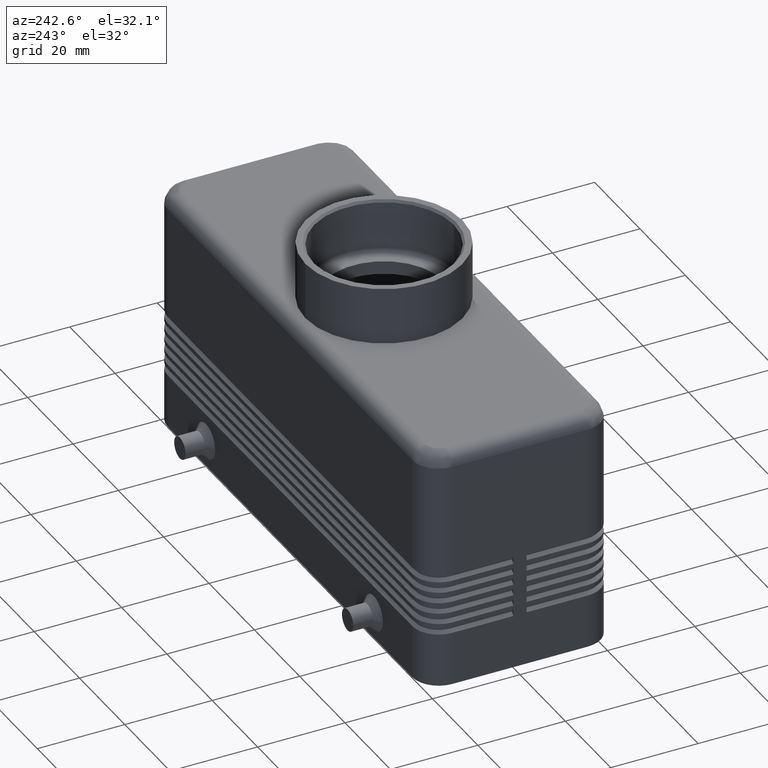
[diagram: clean part render]
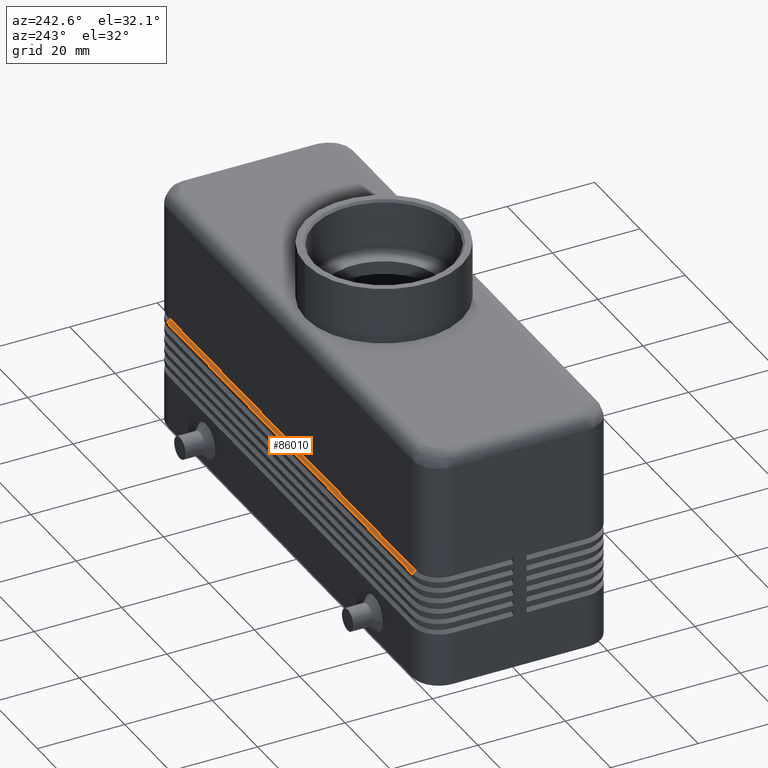
[diagram: same view with one face highlighted and labeled with its STEP entity id]
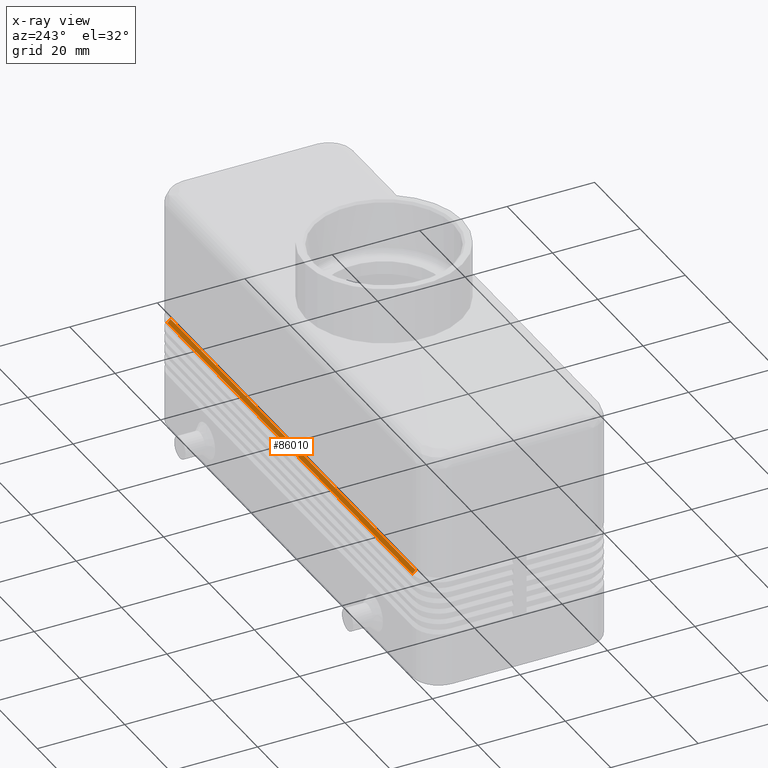
[diagram: x-ray of the same camera — body ghosted, the highlighted face saturated]
A machine part, auxiliary view. The second image highlights one B-rep face of the part: STEP entity #86010.
The next image is the same camera in x-ray: the body ghosted, the highlighted face saturated — about 0% of this face is hidden behind the body in this view.
In plain terms, the highlighted planar face has unit normal (-0, 0.7071, 0.7071).
Its self-contained STEP definition (entity closure, byte-faithful):
#20070=CARTESIAN_POINT('',(54.,21.5,24.75));
#20080=VERTEX_POINT('',#20070);
#22500=CARTESIAN_POINT('',(-54.,21.5,24.75));
#22510=VERTEX_POINT('',#22500);
#32230=CARTESIAN_POINT('',(54.,20.8,25.45));
#32240=DIRECTION('',(-1.435513E-14,0.70710678118656,-0.707106781186535))
;
#32250=VECTOR('',#32240,0.989949493661178);
#32260=LINE('',#32230,#32250);
#32270=CARTESIAN_POINT('',(54.,20.8,25.45));
#32280=VERTEX_POINT('',#32270);
#32290=EDGE_CURVE('',#32280,#20080,#32260,.T.);
#32710=CARTESIAN_POINT('',(-54.,20.8,25.45));
#32720=DIRECTION('',(7.177566E-15,0.707106781186556,-0.707106781186539))
;
#32730=VECTOR('',#32720,0.989949493661153);
#32740=LINE('',#32710,#32730);
#32750=CARTESIAN_POINT('',(-54.,20.8,25.45));
#32760=VERTEX_POINT('',#32750);
#32770=EDGE_CURVE('',#32760,#22510,#32740,.T.);
#85800=CARTESIAN_POINT('',(4.718448E-15,21.15,25.1));
#85810=DIRECTION('',(-3.047225E-34,0.707106781186548,0.707106781186548))
;
#85820=DIRECTION('',(1.,2.15471346130118E-34,2.15471346130118E-34));
#85830=AXIS2_PLACEMENT_3D('',#85800,#85810,#85820);
#85840=PLANE('',#85830);
#85850=CARTESIAN_POINT('',(54.,21.5,24.75));
#85860=DIRECTION('',(-1.,0.,0.));
#85870=VECTOR('',#85860,108.);
#85880=LINE('',#85850,#85870);
#85890=EDGE_CURVE('',#20080,#22510,#85880,.T.);
#85900=ORIENTED_EDGE('',*,*,#85890,.T.);
#85910=ORIENTED_EDGE('',*,*,#32290,.T.);
#85920=CARTESIAN_POINT('',(54.,20.8,25.45));
#85930=DIRECTION('',(-1.,0.,0.));
#85940=VECTOR('',#85930,108.);
#85950=LINE('',#85920,#85940);
#85960=EDGE_CURVE('',#32280,#32760,#85950,.T.);
#85970=ORIENTED_EDGE('',*,*,#85960,.F.);
#85980=ORIENTED_EDGE('',*,*,#32770,.F.);
#85990=EDGE_LOOP('',(#85980,#85970,#85910,#85900));
#86000=FACE_OUTER_BOUND('',#85990,.T.);
#86010=ADVANCED_FACE('',(#86000),#85840,.T.);